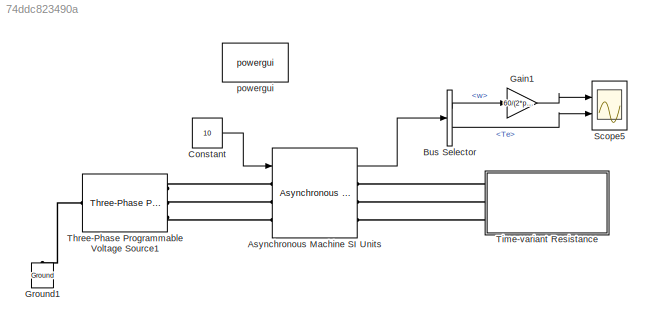
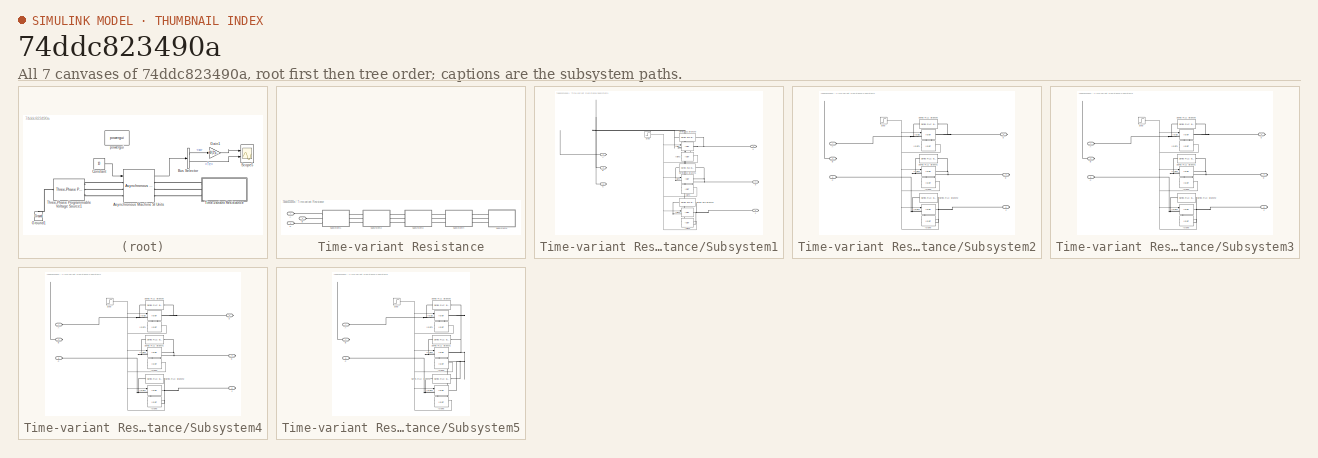
[diagram: thumbnail index - all 7 canvases of the model, root first then tree order]
MODEL slx_74ddc823490a
KIND model
CONFIG AbsTol = auto
CONFIG EnableMultiTasking = on
CONFIG FixedStep = auto
CONFIG MaxStep = 10e-6
CONFIG MinStep = auto
CONFIG RelTol = 1e-4
CONFIG SampleTimeConstraint = Unconstrained
CONFIG Solver = ode23tb
CONFIG SolverName = ode23tb
CONFIG StartTime = 0.0
CONFIG StopTime = 7
BLOCK [Reference] Asynchronous Machine SI Units  REF=powerlib/Machines/Asynchronous Machine
SI Units
  AttributesFormatString = \n
  Ports = [1, 1, 0, 0, 0, 3, 3]
  SourceBlock = powerlib/Machines/Asynchronous Machine\nSI Units
  SourceProductBaseCode = PS
  SourceProductName = Simscape Electrical
  SourceType = Asynchronous Machine
BLOCK [BusSelector] Bus Selector
  OutputAsBus = off
  OutputSignals = w,Te
  Ports = [1, 2]
BLOCK [Constant] Constant
  SampleTime = Inf
  Value = 10
BLOCK [Gain] Gain1
  Gain = 60/(2*pi)
  OutDataTypeStr = Inherit: Inherit via internal rule
  ParamDataTypeStr = Inherit: Inherit via internal rule
  SaturateOnIntegerOverflow = off
BLOCK [Reference] Ground1  REF=powerlib/Elements/Ground
  Ports = [0, 0, 0, 0, 0, 1]
  SourceBlock = powerlib/Elements/Ground
  SourceProductBaseCode = PS
  SourceProductName = Simscape Electrical
  SourceType = Ground
BLOCK [Scope] Scope5
  Floating = off
  NumInputPorts = 2
  Ports = [2]
  ScopeSpecificationString = Simulink.scopes.TimeScopeBlockCfg('CurrentConfiguration', extmgr.ConfigurationSet(extmgr.Configuration('Core','General UI',true,'FigureColor',[0.941176470588235 0.941176470588235 0.941176470588235]),extmgr.Configuration('Core','Source UI',true),extmgr.Configuration('Sources','WiredSimulink',true,'DataLoggingVariableName','ScopeData5'),extmgr.Configuration('Visuals','Time Domain',true,'SerializedDi...<+2665ch>
BLOCK [Reference] Three-Phase Programmable Voltage Source1  REF=powerlib/Electrical
Sources/Three-Phase
Programmable
Voltage Source
  Ports = [0, 0, 0, 0, 0, 1, 3]
  SourceBlock = powerlib/Electrical\nSources/Three-Phase\nProgrammable\nVoltage Source
  SourceProductBaseCode = PS
  SourceProductName = Simscape Electrical
  SourceType = Three-Phase Programmable Voltage Source
BLOCK [SubSystem] Time-variant Resistance
  Ports = [0, 0, 0, 0, 0, 3]
  RequestExecContextInheritance = off
BLOCK [PMIOPort] Time-variant Resistance/A
  Side = Left
BLOCK [PMIOPort] Time-variant Resistance/B
  Port = 2
  Side = Left
BLOCK [PMIOPort] Time-variant Resistance/C
  Port = 3
  Side = Left
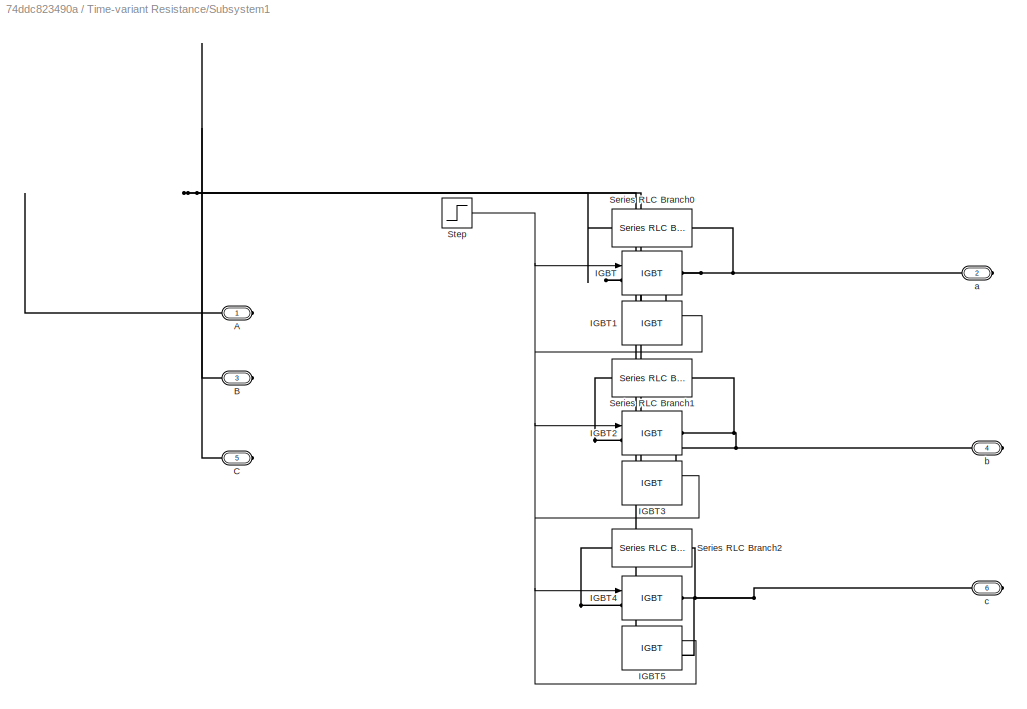
BLOCK [SubSystem] Time-variant Resistance/Subsystem1
  Ports = [0, 0, 0, 0, 0, 3, 3]
  RequestExecContextInheritance = off
BLOCK [PMIOPort] Time-variant Resistance/Subsystem1/A
  Side = Left
BLOCK [PMIOPort] Time-variant Resistance/Subsystem1/B
  Port = 3
  Side = Left
BLOCK [PMIOPort] Time-variant Resistance/Subsystem1/C
  Port = 5
  Side = Left
BLOCK [Reference] Time-variant Resistance/Subsystem1/IGBT  REF=powerlib/Power
Electronics/IGBT
  Ports = [1, 0, 0, 0, 0, 1, 1]
  SourceBlock = powerlib/Power\nElectronics/IGBT
  SourceProductBaseCode = PS
  SourceProductName = Simscape Power Systems
  SourceType = IGBT
BLOCK [Reference] Time-variant Resistance/Subsystem1/IGBT1  REF=powerlib/Power
Electronics/IGBT
  Ports = [1, 0, 0, 0, 0, 1, 1]
  SourceBlock = powerlib/Power\nElectronics/IGBT
  SourceProductBaseCode = PS
  SourceProductName = Simscape Power Systems
  SourceType = IGBT
BLOCK [Reference] Time-variant Resistance/Subsystem1/IGBT2  REF=powerlib/Power
Electronics/IGBT
  Ports = [1, 0, 0, 0, 0, 1, 1]
  SourceBlock = powerlib/Power\nElectronics/IGBT
  SourceProductBaseCode = PS
  SourceProductName = Simscape Power Systems
  SourceType = IGBT
BLOCK [Reference] Time-variant Resistance/Subsystem1/IGBT3  REF=powerlib/Power
Electronics/IGBT
  Ports = [1, 0, 0, 0, 0, 1, 1]
  SourceBlock = powerlib/Power\nElectronics/IGBT
  SourceProductBaseCode = PS
  SourceProductName = Simscape Power Systems
  SourceType = IGBT
BLOCK [Reference] Time-variant Resistance/Subsystem1/IGBT4  REF=powerlib/Power
Electronics/IGBT
  Ports = [1, 0, 0, 0, 0, 1, 1]
  SourceBlock = powerlib/Power\nElectronics/IGBT
  SourceProductBaseCode = PS
  SourceProductName = Simscape Power Systems
  SourceType = IGBT
BLOCK [Reference] Time-variant Resistance/Subsystem1/IGBT5  REF=powerlib/Power
Electronics/IGBT
  Ports = [1, 0, 0, 0, 0, 1, 1]
  SourceBlock = powerlib/Power\nElectronics/IGBT
  SourceProductBaseCode = PS
  SourceProductName = Simscape Power Systems
  SourceType = IGBT
BLOCK [Reference] Time-variant Resistance/Subsystem1/Series RLC Branch0  REF=powerlib/Elements/Series RLC Branch
  Ports = [0, 0, 0, 0, 0, 1, 1]
  SourceBlock = powerlib/Elements/Series RLC Branch
  SourceProductBaseCode = PS
  SourceProductName = Simscape Power Systems
  SourceType = Series RLC Branch
BLOCK [Reference] Time-variant Resistance/Subsystem1/Series RLC Branch1  REF=powerlib/Elements/Series RLC Branch
  Ports = [0, 0, 0, 0, 0, 1, 1]
  SourceBlock = powerlib/Elements/Series RLC Branch
  SourceProductBaseCode = PS
  SourceProductName = Simscape Power Systems
  SourceType = Series RLC Branch
BLOCK [Reference] Time-variant Resistance/Subsystem1/Series RLC Branch2  REF=powerlib/Elements/Series RLC Branch
  Ports = [0, 0, 0, 0, 0, 1, 1]
  SourceBlock = powerlib/Elements/Series RLC Branch
  SourceProductBaseCode = PS
  SourceProductName = Simscape Power Systems
  SourceType = Series RLC Branch
BLOCK [Step] Time-variant Resistance/Subsystem1/Step
  After = 0
  Before = 1
  SampleTime = 0
BLOCK [PMIOPort] Time-variant Resistance/Subsystem1/a
  Port = 2
  Side = Right
BLOCK [PMIOPort] Time-variant Resistance/Subsystem1/b
  Port = 4
  Side = Right
BLOCK [PMIOPort] Time-variant Resistance/Subsystem1/c
  Port = 6
  Side = Right
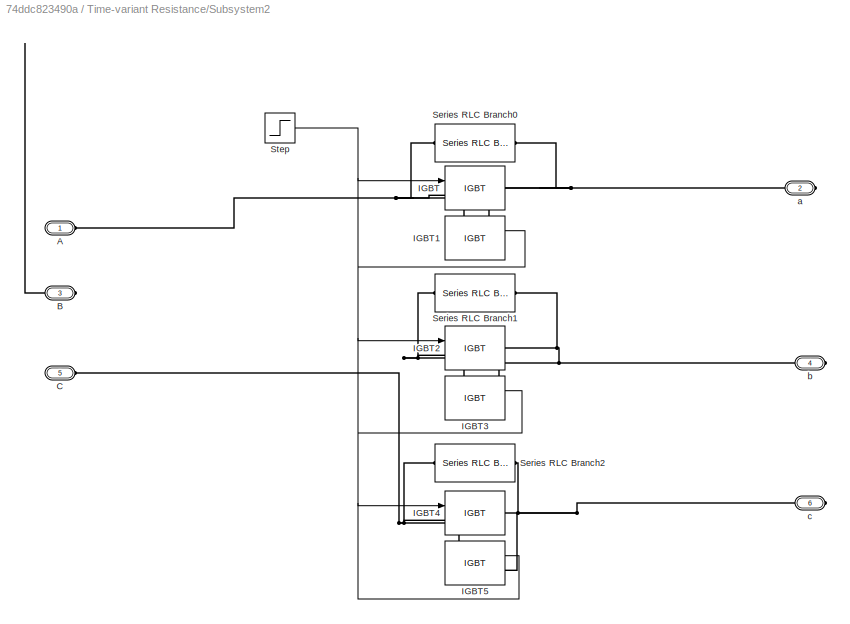
BLOCK [SubSystem] Time-variant Resistance/Subsystem2
  Ports = [0, 0, 0, 0, 0, 3, 3]
  RequestExecContextInheritance = off
BLOCK [PMIOPort] Time-variant Resistance/Subsystem2/A
  Side = Left
BLOCK [PMIOPort] Time-variant Resistance/Subsystem2/B
  Port = 3
  Side = Left
BLOCK [PMIOPort] Time-variant Resistance/Subsystem2/C
  Port = 5
  Side = Left
BLOCK [Reference] Time-variant Resistance/Subsystem2/IGBT  REF=powerlib/Power
Electronics/IGBT
  Ports = [1, 0, 0, 0, 0, 1, 1]
  SourceBlock = powerlib/Power\nElectronics/IGBT
  SourceProductBaseCode = PS
  SourceProductName = Simscape Power Systems
  SourceType = IGBT
BLOCK [Reference] Time-variant Resistance/Subsystem2/IGBT1  REF=powerlib/Power
Electronics/IGBT
  Ports = [1, 0, 0, 0, 0, 1, 1]
  SourceBlock = powerlib/Power\nElectronics/IGBT
  SourceProductBaseCode = PS
  SourceProductName = Simscape Power Systems
  SourceType = IGBT
BLOCK [Reference] Time-variant Resistance/Subsystem2/IGBT2  REF=powerlib/Power
Electronics/IGBT
  Ports = [1, 0, 0, 0, 0, 1, 1]
  SourceBlock = powerlib/Power\nElectronics/IGBT
  SourceProductBaseCode = PS
  SourceProductName = Simscape Power Systems
  SourceType = IGBT
BLOCK [Reference] Time-variant Resistance/Subsystem2/IGBT3  REF=powerlib/Power
Electronics/IGBT
  Ports = [1, 0, 0, 0, 0, 1, 1]
  SourceBlock = powerlib/Power\nElectronics/IGBT
  SourceProductBaseCode = PS
  SourceProductName = Simscape Power Systems
  SourceType = IGBT
BLOCK [Reference] Time-variant Resistance/Subsystem2/IGBT4  REF=powerlib/Power
Electronics/IGBT
  Ports = [1, 0, 0, 0, 0, 1, 1]
  SourceBlock = powerlib/Power\nElectronics/IGBT
  SourceProductBaseCode = PS
  SourceProductName = Simscape Power Systems
  SourceType = IGBT
BLOCK [Reference] Time-variant Resistance/Subsystem2/IGBT5  REF=powerlib/Power
Electronics/IGBT
  Ports = [1, 0, 0, 0, 0, 1, 1]
  SourceBlock = powerlib/Power\nElectronics/IGBT
  SourceProductBaseCode = PS
  SourceProductName = Simscape Power Systems
  SourceType = IGBT
BLOCK [Reference] Time-variant Resistance/Subsystem2/Series RLC Branch0  REF=powerlib/Elements/Series RLC Branch
  Ports = [0, 0, 0, 0, 0, 1, 1]
  SourceBlock = powerlib/Elements/Series RLC Branch
  SourceProductBaseCode = PS
  SourceProductName = Simscape Power Systems
  SourceType = Series RLC Branch
BLOCK [Reference] Time-variant Resistance/Subsystem2/Series RLC Branch1  REF=powerlib/Elements/Series RLC Branch
  Ports = [0, 0, 0, 0, 0, 1, 1]
  SourceBlock = powerlib/Elements/Series RLC Branch
  SourceProductBaseCode = PS
  SourceProductName = Simscape Power Systems
  SourceType = Series RLC Branch
BLOCK [Reference] Time-variant Resistance/Subsystem2/Series RLC Branch2  REF=powerlib/Elements/Series RLC Branch
  Ports = [0, 0, 0, 0, 0, 1, 1]
  SourceBlock = powerlib/Elements/Series RLC Branch
  SourceProductBaseCode = PS
  SourceProductName = Simscape Power Systems
  SourceType = Series RLC Branch
BLOCK [Step] Time-variant Resistance/Subsystem2/Step
  After = 0
  Before = 1
  SampleTime = 0
  Time = 2
BLOCK [PMIOPort] Time-variant Resistance/Subsystem2/a
  Port = 2
  Side = Right
BLOCK [PMIOPort] Time-variant Resistance/Subsystem2/b
  Port = 4
  Side = Right
BLOCK [PMIOPort] Time-variant Resistance/Subsystem2/c
  Port = 6
  Side = Right
BLOCK [SubSystem] Time-variant Resistance/Subsystem3
  Ports = [0, 0, 0, 0, 0, 3, 3]
  RequestExecContextInheritance = off
BLOCK [PMIOPort] Time-variant Resistance/Subsystem3/A
  Side = Left
BLOCK [PMIOPort] Time-variant Resistance/Subsystem3/B
  Port = 3
  Side = Left
BLOCK [PMIOPort] Time-variant Resistance/Subsystem3/C
  Port = 5
  Side = Left
BLOCK [Reference] Time-variant Resistance/Subsystem3/IGBT  REF=powerlib/Power
Electronics/IGBT
  Ports = [1, 0, 0, 0, 0, 1, 1]
  SourceBlock = powerlib/Power\nElectronics/IGBT
  SourceProductBaseCode = PS
  SourceProductName = Simscape Power Systems
  SourceType = IGBT
BLOCK [Reference] Time-variant Resistance/Subsystem3/IGBT1  REF=powerlib/Power
Electronics/IGBT
  Ports = [1, 0, 0, 0, 0, 1, 1]
  SourceBlock = powerlib/Power\nElectronics/IGBT
  SourceProductBaseCode = PS
  SourceProductName = Simscape Power Systems
  SourceType = IGBT
BLOCK [Reference] Time-variant Resistance/Subsystem3/IGBT2  REF=powerlib/Power
Electronics/IGBT
  Ports = [1, 0, 0, 0, 0, 1, 1]
  SourceBlock = powerlib/Power\nElectronics/IGBT
  SourceProductBaseCode = PS
  SourceProductName = Simscape Power Systems
  SourceType = IGBT
BLOCK [Reference] Time-variant Resistance/Subsystem3/IGBT3  REF=powerlib/Power
Electronics/IGBT
  Ports = [1, 0, 0, 0, 0, 1, 1]
  SourceBlock = powerlib/Power\nElectronics/IGBT
  SourceProductBaseCode = PS
  SourceProductName = Simscape Power Systems
  SourceType = IGBT
BLOCK [Reference] Time-variant Resistance/Subsystem3/IGBT4  REF=powerlib/Power
Electronics/IGBT
  Ports = [1, 0, 0, 0, 0, 1, 1]
  SourceBlock = powerlib/Power\nElectronics/IGBT
  SourceProductBaseCode = PS
  SourceProductName = Simscape Power Systems
  SourceType = IGBT
BLOCK [Reference] Time-variant Resistance/Subsystem3/IGBT5  REF=powerlib/Power
Electronics/IGBT
  Ports = [1, 0, 0, 0, 0, 1, 1]
  SourceBlock = powerlib/Power\nElectronics/IGBT
  SourceProductBaseCode = PS
  SourceProductName = Simscape Power Systems
  SourceType = IGBT
BLOCK [Reference] Time-variant Resistance/Subsystem3/Series RLC Branch0  REF=powerlib/Elements/Series RLC Branch
  Ports = [0, 0, 0, 0, 0, 1, 1]
  SourceBlock = powerlib/Elements/Series RLC Branch
  SourceProductBaseCode = PS
  SourceProductName = Simscape Power Systems
  SourceType = Series RLC Branch
BLOCK [Reference] Time-variant Resistance/Subsystem3/Series RLC Branch1  REF=powerlib/Elements/Series RLC Branch
  Ports = [0, 0, 0, 0, 0, 1, 1]
  SourceBlock = powerlib/Elements/Series RLC Branch
  SourceProductBaseCode = PS
  SourceProductName = Simscape Power Systems
  SourceType = Series RLC Branch
BLOCK [Reference] Time-variant Resistance/Subsystem3/Series RLC Branch2  REF=powerlib/Elements/Series RLC Branch
  Ports = [0, 0, 0, 0, 0, 1, 1]
  SourceBlock = powerlib/Elements/Series RLC Branch
  SourceProductBaseCode = PS
  SourceProductName = Simscape Power Systems
  SourceType = Series RLC Branch
BLOCK [Step] Time-variant Resistance/Subsystem3/Step
  After = 0
  Before = 1
  SampleTime = 0
  Time = 3
BLOCK [PMIOPort] Time-variant Resistance/Subsystem3/a
  Port = 2
  Side = Right
BLOCK [PMIOPort] Time-variant Resistance/Subsystem3/b
  Port = 4
  Side = Right
BLOCK [PMIOPort] Time-variant Resistance/Subsystem3/c
  Port = 6
  Side = Right
BLOCK [SubSystem] Time-variant Resistance/Subsystem4
  Ports = [0, 0, 0, 0, 0, 3, 3]
  RequestExecContextInheritance = off
BLOCK [PMIOPort] Time-variant Resistance/Subsystem4/A
  Side = Left
BLOCK [PMIOPort] Time-variant Resistance/Subsystem4/B
  Port = 3
  Side = Left
BLOCK [PMIOPort] Time-variant Resistance/Subsystem4/C
  Port = 5
  Side = Left
BLOCK [Reference] Time-variant Resistance/Subsystem4/IGBT  REF=powerlib/Power
Electronics/IGBT
  Ports = [1, 0, 0, 0, 0, 1, 1]
  SourceBlock = powerlib/Power\nElectronics/IGBT
  SourceProductBaseCode = PS
  SourceProductName = Simscape Power Systems
  SourceType = IGBT
BLOCK [Reference] Time-variant Resistance/Subsystem4/IGBT1  REF=powerlib/Power
Electronics/IGBT
  Ports = [1, 0, 0, 0, 0, 1, 1]
  SourceBlock = powerlib/Power\nElectronics/IGBT
  SourceProductBaseCode = PS
  SourceProductName = Simscape Power Systems
  SourceType = IGBT
BLOCK [Reference] Time-variant Resistance/Subsystem4/IGBT2  REF=powerlib/Power
Electronics/IGBT
  Ports = [1, 0, 0, 0, 0, 1, 1]
  SourceBlock = powerlib/Power\nElectronics/IGBT
  SourceProductBaseCode = PS
  SourceProductName = Simscape Power Systems
  SourceType = IGBT
BLOCK [Reference] Time-variant Resistance/Subsystem4/IGBT3  REF=powerlib/Power
Electronics/IGBT
  Ports = [1, 0, 0, 0, 0, 1, 1]
  SourceBlock = powerlib/Power\nElectronics/IGBT
  SourceProductBaseCode = PS
  SourceProductName = Simscape Power Systems
  SourceType = IGBT
BLOCK [Reference] Time-variant Resistance/Subsystem4/IGBT4  REF=powerlib/Power
Electronics/IGBT
  Ports = [1, 0, 0, 0, 0, 1, 1]
  SourceBlock = powerlib/Power\nElectronics/IGBT
  SourceProductBaseCode = PS
  SourceProductName = Simscape Power Systems
  SourceType = IGBT
BLOCK [Reference] Time-variant Resistance/Subsystem4/IGBT5  REF=powerlib/Power
Electronics/IGBT
  Ports = [1, 0, 0, 0, 0, 1, 1]
  SourceBlock = powerlib/Power\nElectronics/IGBT
  SourceProductBaseCode = PS
  SourceProductName = Simscape Power Systems
  SourceType = IGBT
BLOCK [Reference] Time-variant Resistance/Subsystem4/Series RLC Branch0  REF=powerlib/Elements/Series RLC Branch
  Ports = [0, 0, 0, 0, 0, 1, 1]
  SourceBlock = powerlib/Elements/Series RLC Branch
  SourceProductBaseCode = PS
  SourceProductName = Simscape Power Systems
  SourceType = Series RLC Branch
BLOCK [Reference] Time-variant Resistance/Subsystem4/Series RLC Branch1  REF=powerlib/Elements/Series RLC Branch
  Ports = [0, 0, 0, 0, 0, 1, 1]
  SourceBlock = powerlib/Elements/Series RLC Branch
  SourceProductBaseCode = PS
  SourceProductName = Simscape Power Systems
  SourceType = Series RLC Branch
BLOCK [Reference] Time-variant Resistance/Subsystem4/Series RLC Branch2  REF=powerlib/Elements/Series RLC Branch
  Ports = [0, 0, 0, 0, 0, 1, 1]
  SourceBlock = powerlib/Elements/Series RLC Branch
  SourceProductBaseCode = PS
  SourceProductName = Simscape Power Systems
  SourceType = Series RLC Branch
BLOCK [Step] Time-variant Resistance/Subsystem4/Step
  After = 0
  Before = 1
  SampleTime = 0
  Time = 4
BLOCK [PMIOPort] Time-variant Resistance/Subsystem4/a
  Port = 2
  Side = Right
BLOCK [PMIOPort] Time-variant Resistance/Subsystem4/b
  Port = 4
  Side = Right
BLOCK [PMIOPort] Time-variant Resistance/Subsystem4/c
  Port = 6
  Side = Right
BLOCK [SubSystem] Time-variant Resistance/Subsystem5
  Ports = [0, 0, 0, 0, 0, 3]
  RequestExecContextInheritance = off
BLOCK [PMIOPort] Time-variant Resistance/Subsystem5/A
  Side = Left
BLOCK [PMIOPort] Time-variant Resistance/Subsystem5/B
  Port = 2
  Side = Left
BLOCK [PMIOPort] Time-variant Resistance/Subsystem5/C
  Port = 3
  Side = Left
BLOCK [Reference] Time-variant Resistance/Subsystem5/IGBT  REF=powerlib/Power
Electronics/IGBT
  Ports = [1, 0, 0, 0, 0, 1, 1]
  SourceBlock = powerlib/Power\nElectronics/IGBT
  SourceProductBaseCode = PS
  SourceProductName = Simscape Power Systems
  SourceType = IGBT
BLOCK [Reference] Time-variant Resistance/Subsystem5/IGBT1  REF=powerlib/Power
Electronics/IGBT
  Ports = [1, 0, 0, 0, 0, 1, 1]
  SourceBlock = powerlib/Power\nElectronics/IGBT
  SourceProductBaseCode = PS
  SourceProductName = Simscape Power Systems
  SourceType = IGBT
BLOCK [Reference] Time-variant Resistance/Subsystem5/IGBT2  REF=powerlib/Power
Electronics/IGBT
  Ports = [1, 0, 0, 0, 0, 1, 1]
  SourceBlock = powerlib/Power\nElectronics/IGBT
  SourceProductBaseCode = PS
  SourceProductName = Simscape Power Systems
  SourceType = IGBT
BLOCK [Reference] Time-variant Resistance/Subsystem5/IGBT3  REF=powerlib/Power
Electronics/IGBT
  Ports = [1, 0, 0, 0, 0, 1, 1]
  SourceBlock = powerlib/Power\nElectronics/IGBT
  SourceProductBaseCode = PS
  SourceProductName = Simscape Power Systems
  SourceType = IGBT
BLOCK [Reference] Time-variant Resistance/Subsystem5/IGBT4  REF=powerlib/Power
Electronics/IGBT
  Ports = [1, 0, 0, 0, 0, 1, 1]
  SourceBlock = powerlib/Power\nElectronics/IGBT
  SourceProductBaseCode = PS
  SourceProductName = Simscape Power Systems
  SourceType = IGBT
BLOCK [Reference] Time-variant Resistance/Subsystem5/IGBT5  REF=powerlib/Power
Electronics/IGBT
  Ports = [1, 0, 0, 0, 0, 1, 1]
  SourceBlock = powerlib/Power\nElectronics/IGBT
  SourceProductBaseCode = PS
  SourceProductName = Simscape Power Systems
  SourceType = IGBT
BLOCK [Reference] Time-variant Resistance/Subsystem5/Series RLC Branch0  REF=powerlib/Elements/Series RLC Branch
  Ports = [0, 0, 0, 0, 0, 1, 1]
  SourceBlock = powerlib/Elements/Series RLC Branch
  SourceProductBaseCode = PS
  SourceProductName = Simscape Power Systems
  SourceType = Series RLC Branch
BLOCK [Reference] Time-variant Resistance/Subsystem5/Series RLC Branch1  REF=powerlib/Elements/Series RLC Branch
  Ports = [0, 0, 0, 0, 0, 1, 1]
  SourceBlock = powerlib/Elements/Series RLC Branch
  SourceProductBaseCode = PS
  SourceProductName = Simscape Power Systems
  SourceType = Series RLC Branch
BLOCK [Reference] Time-variant Resistance/Subsystem5/Series RLC Branch2  REF=powerlib/Elements/Series RLC Branch
  Ports = [0, 0, 0, 0, 0, 1, 1]
  SourceBlock = powerlib/Elements/Series RLC Branch
  SourceProductBaseCode = PS
  SourceProductName = Simscape Power Systems
  SourceType = Series RLC Branch
BLOCK [Step] Time-variant Resistance/Subsystem5/Step
  After = 0
  Before = 1
  SampleTime = 0
  Time = 5
BLOCK [Reference] powergui  REF=powerlib/powergui
  Ports = []
  Priority = 1
  SourceBlock = powerlib/powergui
  SourceProductBaseCode = PS
  SourceProductName = Simscape Power Systems
  SourceType = PSB option menu block
LINE Asynchronous Machine SI Units:1 -> Bus Selector:1
LINE Bus Selector:1 -> Gain1:1
LINE Bus Selector:2 -> Scope5:2
LINE Constant:1 -> Asynchronous Machine SI Units:1
LINE Gain1:1 -> Scope5:1
NET Time-variant Resistance/Subsystem1/Step:1 -> Time-variant Resistance/Subsystem1/IGBT1:1, Time-variant Resistance/Subsystem1/IGBT2:1, Time-variant Resistance/Subsystem1/IGBT3:1, Time-variant Resistance/Subsystem1/IGBT4:1, Time-variant Resistance/Subsystem1/IGBT5:1, Time-variant Resistance/Subsystem1/IGBT:1
NET Time-variant Resistance/Subsystem2/Step:1 -> Time-variant Resistance/Subsystem2/IGBT1:1, Time-variant Resistance/Subsystem2/IGBT2:1, Time-variant Resistance/Subsystem2/IGBT3:1, Time-variant Resistance/Subsystem2/IGBT4:1, Time-variant Resistance/Subsystem2/IGBT5:1, Time-variant Resistance/Subsystem2/IGBT:1
NET Time-variant Resistance/Subsystem3/Step:1 -> Time-variant Resistance/Subsystem3/IGBT1:1, Time-variant Resistance/Subsystem3/IGBT2:1, Time-variant Resistance/Subsystem3/IGBT3:1, Time-variant Resistance/Subsystem3/IGBT4:1, Time-variant Resistance/Subsystem3/IGBT5:1, Time-variant Resistance/Subsystem3/IGBT:1
NET Time-variant Resistance/Subsystem4/Step:1 -> Time-variant Resistance/Subsystem4/IGBT1:1, Time-variant Resistance/Subsystem4/IGBT2:1, Time-variant Resistance/Subsystem4/IGBT3:1, Time-variant Resistance/Subsystem4/IGBT4:1, Time-variant Resistance/Subsystem4/IGBT5:1, Time-variant Resistance/Subsystem4/IGBT:1
NET Time-variant Resistance/Subsystem5/Step:1 -> Time-variant Resistance/Subsystem5/IGBT1:1, Time-variant Resistance/Subsystem5/IGBT2:1, Time-variant Resistance/Subsystem5/IGBT3:1, Time-variant Resistance/Subsystem5/IGBT4:1, Time-variant Resistance/Subsystem5/IGBT5:1, Time-variant Resistance/Subsystem5/IGBT:1
PLINE Asynchronous Machine SI Units:LConn1 -- Three-Phase Programmable Voltage Source1:RConn1
PLINE Asynchronous Machine SI Units:LConn2 -- Three-Phase Programmable Voltage Source1:RConn2
PLINE Asynchronous Machine SI Units:LConn3 -- Three-Phase Programmable Voltage Source1:RConn3
PLINE Asynchronous Machine SI Units:RConn1 -- Time-variant Resistance:LConn1
PLINE Asynchronous Machine SI Units:RConn2 -- Time-variant Resistance:LConn2
PLINE Asynchronous Machine SI Units:RConn3 -- Time-variant Resistance:LConn3
PLINE Ground1:LConn1 -- Three-Phase Programmable Voltage Source1:LConn1
PLINE Time-variant Resistance/A:RConn1 -- Time-variant Resistance/Subsystem1:LConn1
PLINE Time-variant Resistance/B:RConn1 -- Time-variant Resistance/Subsystem1:LConn2
PLINE Time-variant Resistance/C:RConn1 -- Time-variant Resistance/Subsystem1:LConn3
PNET net1: Time-variant Resistance/Subsystem1/A:RConn1 -- Time-variant Resistance/Subsystem1/IGBT1:RConn1 -- Time-variant Resistance/Subsystem1/IGBT:LConn1 -- Time-variant Resistance/Subsystem1/Series RLC Branch0:LConn1
PNET net2: Time-variant Resistance/Subsystem1/B:RConn1 -- Time-variant Resistance/Subsystem1/IGBT2:LConn1 -- Time-variant Resistance/Subsystem1/IGBT3:RConn1 -- Time-variant Resistance/Subsystem1/Series RLC Branch1:LConn1
PNET net3: Time-variant Resistance/Subsystem1/C:RConn1 -- Time-variant Resistance/Subsystem1/IGBT4:LConn1 -- Time-variant Resistance/Subsystem1/IGBT5:RConn1 -- Time-variant Resistance/Subsystem1/Series RLC Branch2:LConn1
PNET net4: Time-variant Resistance/Subsystem1/IGBT1:LConn1 -- Time-variant Resistance/Subsystem1/IGBT:RConn1 -- Time-variant Resistance/Subsystem1/Series RLC Branch0:RConn1 -- Time-variant Resistance/Subsystem1/a:RConn1
PNET net5: Time-variant Resistance/Subsystem1/IGBT2:RConn1 -- Time-variant Resistance/Subsystem1/IGBT3:LConn1 -- Time-variant Resistance/Subsystem1/Series RLC Branch1:RConn1 -- Time-variant Resistance/Subsystem1/b:RConn1
PNET net6: Time-variant Resistance/Subsystem1/IGBT4:RConn1 -- Time-variant Resistance/Subsystem1/IGBT5:LConn1 -- Time-variant Resistance/Subsystem1/Series RLC Branch2:RConn1 -- Time-variant Resistance/Subsystem1/c:RConn1
PLINE Time-variant Resistance/Subsystem1:RConn1 -- Time-variant Resistance/Subsystem2:LConn1
PLINE Time-variant Resistance/Subsystem1:RConn2 -- Time-variant Resistance/Subsystem2:LConn2
PLINE Time-variant Resistance/Subsystem1:RConn3 -- Time-variant Resistance/Subsystem2:LConn3
PNET net7: Time-variant Resistance/Subsystem2/A:RConn1 -- Time-variant Resistance/Subsystem2/IGBT1:RConn1 -- Time-variant Resistance/Subsystem2/IGBT:LConn1 -- Time-variant Resistance/Subsystem2/Series RLC Branch0:LConn1
PNET net8: Time-variant Resistance/Subsystem2/B:RConn1 -- Time-variant Resistance/Subsystem2/IGBT2:LConn1 -- Time-variant Resistance/Subsystem2/IGBT3:RConn1 -- Time-variant Resistance/Subsystem2/Series RLC Branch1:LConn1
PNET net9: Time-variant Resistance/Subsystem2/C:RConn1 -- Time-variant Resistance/Subsystem2/IGBT4:LConn1 -- Time-variant Resistance/Subsystem2/IGBT5:RConn1 -- Time-variant Resistance/Subsystem2/Series RLC Branch2:LConn1
PNET net10: Time-variant Resistance/Subsystem2/IGBT1:LConn1 -- Time-variant Resistance/Subsystem2/IGBT:RConn1 -- Time-variant Resistance/Subsystem2/Series RLC Branch0:RConn1 -- Time-variant Resistance/Subsystem2/a:RConn1
PNET net11: Time-variant Resistance/Subsystem2/IGBT2:RConn1 -- Time-variant Resistance/Subsystem2/IGBT3:LConn1 -- Time-variant Resistance/Subsystem2/Series RLC Branch1:RConn1 -- Time-variant Resistance/Subsystem2/b:RConn1
PNET net12: Time-variant Resistance/Subsystem2/IGBT4:RConn1 -- Time-variant Resistance/Subsystem2/IGBT5:LConn1 -- Time-variant Resistance/Subsystem2/Series RLC Branch2:RConn1 -- Time-variant Resistance/Subsystem2/c:RConn1
PLINE Time-variant Resistance/Subsystem2:RConn1 -- Time-variant Resistance/Subsystem3:LConn1
PLINE Time-variant Resistance/Subsystem2:RConn2 -- Time-variant Resistance/Subsystem3:LConn2
PLINE Time-variant Resistance/Subsystem2:RConn3 -- Time-variant Resistance/Subsystem3:LConn3
PNET net13: Time-variant Resistance/Subsystem3/A:RConn1 -- Time-variant Resistance/Subsystem3/IGBT1:RConn1 -- Time-variant Resistance/Subsystem3/IGBT:LConn1 -- Time-variant Resistance/Subsystem3/Series RLC Branch0:LConn1
PNET net14: Time-variant Resistance/Subsystem3/B:RConn1 -- Time-variant Resistance/Subsystem3/IGBT2:LConn1 -- Time-variant Resistance/Subsystem3/IGBT3:RConn1 -- Time-variant Resistance/Subsystem3/Series RLC Branch1:LConn1
PNET net15: Time-variant Resistance/Subsystem3/C:RConn1 -- Time-variant Resistance/Subsystem3/IGBT4:LConn1 -- Time-variant Resistance/Subsystem3/IGBT5:RConn1 -- Time-variant Resistance/Subsystem3/Series RLC Branch2:LConn1
PNET net16: Time-variant Resistance/Subsystem3/IGBT1:LConn1 -- Time-variant Resistance/Subsystem3/IGBT:RConn1 -- Time-variant Resistance/Subsystem3/Series RLC Branch0:RConn1 -- Time-variant Resistance/Subsystem3/a:RConn1
PNET net17: Time-variant Resistance/Subsystem3/IGBT2:RConn1 -- Time-variant Resistance/Subsystem3/IGBT3:LConn1 -- Time-variant Resistance/Subsystem3/Series RLC Branch1:RConn1 -- Time-variant Resistance/Subsystem3/b:RConn1
PNET net18: Time-variant Resistance/Subsystem3/IGBT4:RConn1 -- Time-variant Resistance/Subsystem3/IGBT5:LConn1 -- Time-variant Resistance/Subsystem3/Series RLC Branch2:RConn1 -- Time-variant Resistance/Subsystem3/c:RConn1
PLINE Time-variant Resistance/Subsystem3:RConn1 -- Time-variant Resistance/Subsystem4:LConn1
PLINE Time-variant Resistance/Subsystem3:RConn2 -- Time-variant Resistance/Subsystem4:LConn2
PLINE Time-variant Resistance/Subsystem3:RConn3 -- Time-variant Resistance/Subsystem4:LConn3
PNET net19: Time-variant Resistance/Subsystem4/A:RConn1 -- Time-variant Resistance/Subsystem4/IGBT1:RConn1 -- Time-variant Resistance/Subsystem4/IGBT:LConn1 -- Time-variant Resistance/Subsystem4/Series RLC Branch0:LConn1
PNET net20: Time-variant Resistance/Subsystem4/B:RConn1 -- Time-variant Resistance/Subsystem4/IGBT2:LConn1 -- Time-variant Resistance/Subsystem4/IGBT3:RConn1 -- Time-variant Resistance/Subsystem4/Series RLC Branch1:LConn1
PNET net21: Time-variant Resistance/Subsystem4/C:RConn1 -- Time-variant Resistance/Subsystem4/IGBT4:LConn1 -- Time-variant Resistance/Subsystem4/IGBT5:RConn1 -- Time-variant Resistance/Subsystem4/Series RLC Branch2:LConn1
PNET net22: Time-variant Resistance/Subsystem4/IGBT1:LConn1 -- Time-variant Resistance/Subsystem4/IGBT:RConn1 -- Time-variant Resistance/Subsystem4/Series RLC Branch0:RConn1 -- Time-variant Resistance/Subsystem4/a:RConn1
PNET net23: Time-variant Resistance/Subsystem4/IGBT2:RConn1 -- Time-variant Resistance/Subsystem4/IGBT3:LConn1 -- Time-variant Resistance/Subsystem4/Series RLC Branch1:RConn1 -- Time-variant Resistance/Subsystem4/b:RConn1
PNET net24: Time-variant Resistance/Subsystem4/IGBT4:RConn1 -- Time-variant Resistance/Subsystem4/IGBT5:LConn1 -- Time-variant Resistance/Subsystem4/Series RLC Branch2:RConn1 -- Time-variant Resistance/Subsystem4/c:RConn1
PLINE Time-variant Resistance/Subsystem4:RConn1 -- Time-variant Resistance/Subsystem5:LConn1
PLINE Time-variant Resistance/Subsystem4:RConn2 -- Time-variant Resistance/Subsystem5:LConn2
PLINE Time-variant Resistance/Subsystem4:RConn3 -- Time-variant Resistance/Subsystem5:LConn3
PNET net25: Time-variant Resistance/Subsystem5/A:RConn1 -- Time-variant Resistance/Subsystem5/IGBT1:RConn1 -- Time-variant Resistance/Subsystem5/IGBT:LConn1 -- Time-variant Resistance/Subsystem5/Series RLC Branch0:LConn1
PNET net26: Time-variant Resistance/Subsystem5/B:RConn1 -- Time-variant Resistance/Subsystem5/IGBT2:LConn1 -- Time-variant Resistance/Subsystem5/IGBT3:RConn1 -- Time-variant Resistance/Subsystem5/Series RLC Branch1:LConn1
PNET net27: Time-variant Resistance/Subsystem5/C:RConn1 -- Time-variant Resistance/Subsystem5/IGBT4:LConn1 -- Time-variant Resistance/Subsystem5/IGBT5:RConn1 -- Time-variant Resistance/Subsystem5/Series RLC Branch2:LConn1
PNET net28: Time-variant Resistance/Subsystem5/IGBT1:LConn1 -- Time-variant Resistance/Subsystem5/IGBT2:RConn1 -- Time-variant Resistance/Subsystem5/IGBT3:LConn1 -- Time-variant Resistance/Subsystem5/IGBT4:RConn1 -- Time-variant Resistance/Subsystem5/IGBT5:LConn1 -- Time-variant Resistance/Subsystem5/IGBT:RConn1 -- Time-variant Resistance/Subsystem5/Series RLC Branch0:RConn1 -- Time-variant Resistance/Subsystem5/Series RLC Branch1:RConn1 -- Time-variant Resistance/Subsystem5/Series RLC Branch2:RConn1
note: NET lines group one-source signal fan-out (src -> all destinations, sorted); 1:1 wires keep LINE; PNET lines group multi-terminal physical nets as a canonical sorted terminal list (undirected conserving connections); 2-terminal nets keep the pairwise PLINE form
